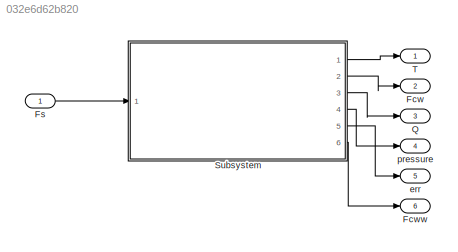
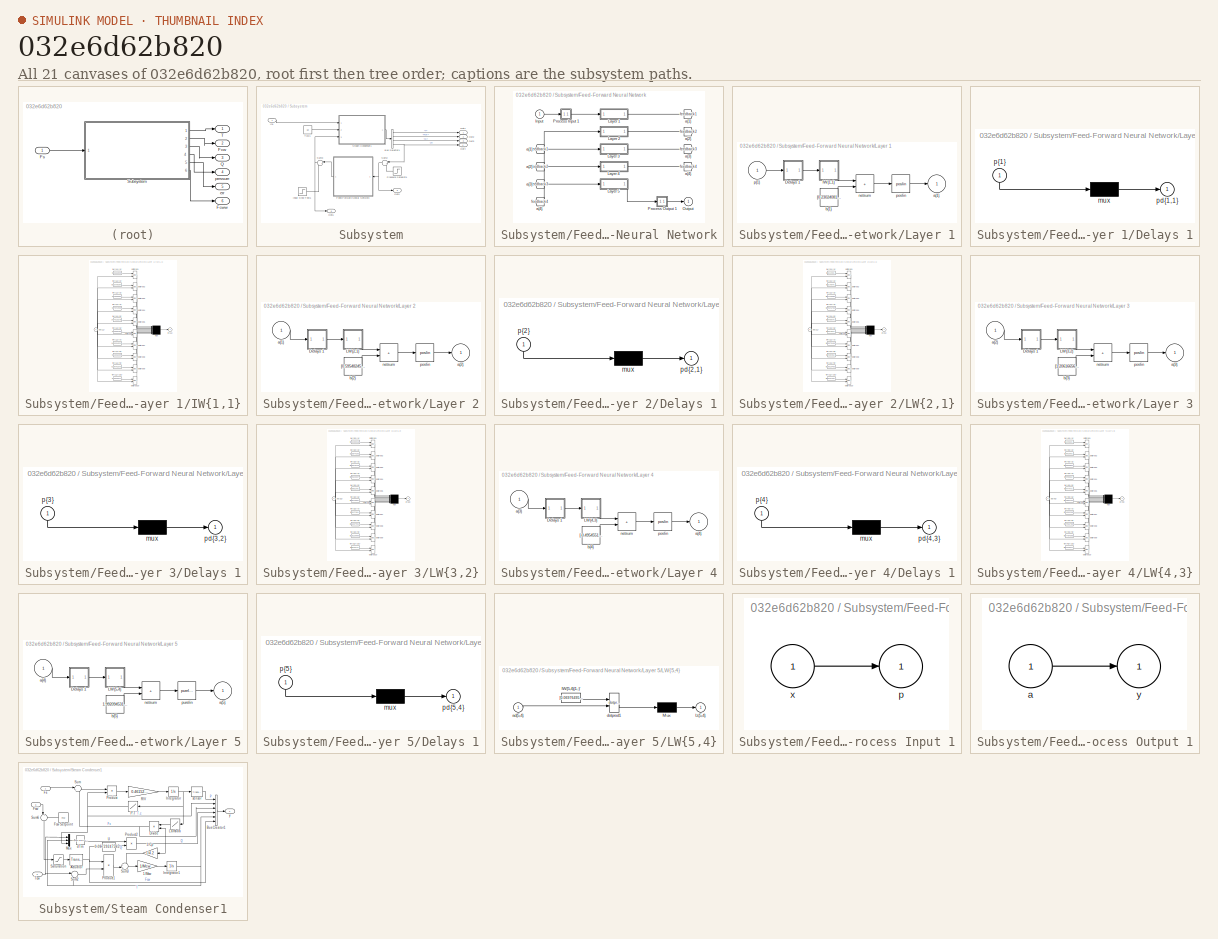
[diagram: thumbnail index - all 21 canvases of the model, root first then tree order]
MODEL slx_032e6d62b820
KIND model
CONFIG AbsTol = auto
CONFIG EnableMultiTasking = off
CONFIG FixedStep = 0.02
CONFIG MaxStep = .1
CONFIG MinStep = auto
CONFIG RelTol = 1e-3
CONFIG SampleTimeConstraint = Unconstrained
CONFIG SolverName = VariableStepAuto
CONFIG StartTime = 0.0
CONFIG StopTime = 40
WORKSPACE source: mxarray member
WORKSPACE T = [0 0.05 0.1 0.15 0.2 0.25 0.3 0.35 0.4 0.45 0.5 0.55 ... (701 elements, 701x1)]
WORKSPACE U = [3.99594136536 3.99594136536 3.99594136536 3.99594136536 3.99594136536 3.99594136536 3.99594136536 3.99594136536 3.99594136536 3.99594136536 3.99594136536 3.99594136536 ... (701 elements, 701x1)]
BLOCK [Outport] Fcw
  Port = 2
  VectorParamsAs1DForOutWhenUnconnected = off
BLOCK [Outport] Fcww
  Port = 6
BLOCK [Inport] Fs
BLOCK [Outport] Q
  Port = 3
  VectorParamsAs1DForOutWhenUnconnected = off
BLOCK [SubSystem] Subsystem
  Ports = [1, 6]
BLOCK [BusSelector] Subsystem/Bus Selector1
  OutputSignals = T,Fcw,Q,P
  Ports = [1, 4]
BLOCK [SubSystem] Subsystem/Feed-Forward Neural Network
  Ports = [1, 1]
BLOCK [From] Subsystem/Feed-Forward Neural Network/ a{1} 
  GotoTag = feedback1
BLOCK [From] Subsystem/Feed-Forward Neural Network/ a{2} 
  GotoTag = feedback2
BLOCK [From] Subsystem/Feed-Forward Neural Network/ a{3} 
  GotoTag = feedback3
BLOCK [From] Subsystem/Feed-Forward Neural Network/ a{4} 
  GotoTag = feedback4
BLOCK [Inport] Subsystem/Feed-Forward Neural Network/Input
  PortDimensions = 1
BLOCK [SubSystem] Subsystem/Feed-Forward Neural Network/Layer 1
  Ports = [1, 1]
BLOCK [SubSystem] Subsystem/Feed-Forward Neural Network/Layer 1/Delays 1
  Ports = [1, 1]
BLOCK [Mux] Subsystem/Feed-Forward Neural Network/Layer 1/Delays 1/mux
  Inputs = 1
  Ports = [1, 1]
BLOCK [Outport] Subsystem/Feed-Forward Neural Network/Layer 1/Delays 1/pd{1,1}
BLOCK [Inport] Subsystem/Feed-Forward Neural Network/Layer 1/Delays 1/p{1}
  NameLocation = left
  PortDimensions = 1
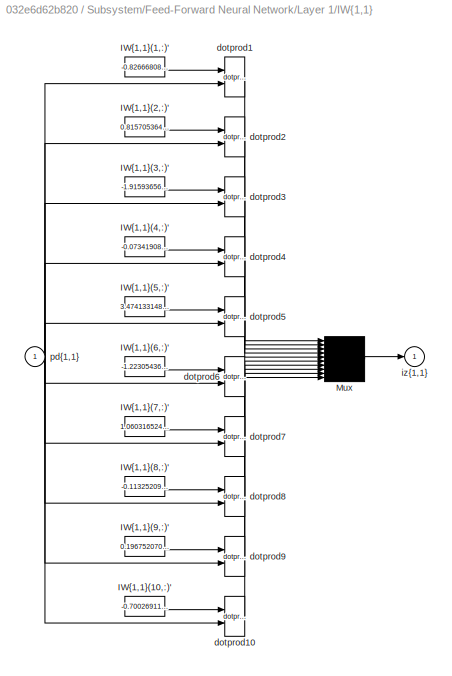
BLOCK [SubSystem] Subsystem/Feed-Forward Neural Network/Layer 1/IW{1,1}
  Ports = [1, 1]
BLOCK [Constant] Subsystem/Feed-Forward Neural Network/Layer 1/IW{1,1}/IW{1,1}(1,:)'
  Value = -0.826668084825399329673700776766054332256317138671875
BLOCK [Constant] Subsystem/Feed-Forward Neural Network/Layer 1/IW{1,1}/IW{1,1}(10,:)'
  Value = -0.70026911504406630371022401959635317325592041015625
BLOCK [Constant] Subsystem/Feed-Forward Neural Network/Layer 1/IW{1,1}/IW{1,1}(2,:)'
  Value = 0.815705364197036875140156553243286907672882080078125
BLOCK [Constant] Subsystem/Feed-Forward Neural Network/Layer 1/IW{1,1}/IW{1,1}(3,:)'
  Value = -1.9159365616009440547173880986520089209079742431640625
BLOCK [Constant] Subsystem/Feed-Forward Neural Network/Layer 1/IW{1,1}/IW{1,1}(4,:)'
  Value = -0.0734190816843673654812363338351133279502391815185546875
BLOCK [Constant] Subsystem/Feed-Forward Neural Network/Layer 1/IW{1,1}/IW{1,1}(5,:)'
  Value = 3.4741331485100896969697714666835963726043701171875
BLOCK [Constant] Subsystem/Feed-Forward Neural Network/Layer 1/IW{1,1}/IW{1,1}(6,:)'
  Value = -1.2230543623648468809506084653548896312713623046875
BLOCK [Constant] Subsystem/Feed-Forward Neural Network/Layer 1/IW{1,1}/IW{1,1}(7,:)'
  Value = 1.0603165244370444941779396685888059437274932861328125
BLOCK [Constant] Subsystem/Feed-Forward Neural Network/Layer 1/IW{1,1}/IW{1,1}(8,:)'
  Value = -0.113252095370199590274040701842750422656536102294921875
BLOCK [Constant] Subsystem/Feed-Forward Neural Network/Layer 1/IW{1,1}/IW{1,1}(9,:)'
  Value = 0.19675207047984333286194669199176132678985595703125
BLOCK [Mux] Subsystem/Feed-Forward Neural Network/Layer 1/IW{1,1}/Mux
  Inputs = 10
  Ports = [10, 1]
BLOCK [Reference] Subsystem/Feed-Forward Neural Network/Layer 1/IW{1,1}/dotprod1  REF=neural/Weight Functions/dotprod
  Ports = [2, 1]
  SourceBlock = neural/Weight Functions/dotprod
  SourceType = DOTPROD
BLOCK [Reference] Subsystem/Feed-Forward Neural Network/Layer 1/IW{1,1}/dotprod10  REF=neural/Weight Functions/dotprod
  Ports = [2, 1]
  SourceBlock = neural/Weight Functions/dotprod
  SourceType = DOTPROD
BLOCK [Reference] Subsystem/Feed-Forward Neural Network/Layer 1/IW{1,1}/dotprod2  REF=neural/Weight Functions/dotprod
  Ports = [2, 1]
  SourceBlock = neural/Weight Functions/dotprod
  SourceType = DOTPROD
BLOCK [Reference] Subsystem/Feed-Forward Neural Network/Layer 1/IW{1,1}/dotprod3  REF=neural/Weight Functions/dotprod
  Ports = [2, 1]
  SourceBlock = neural/Weight Functions/dotprod
  SourceType = DOTPROD
BLOCK [Reference] Subsystem/Feed-Forward Neural Network/Layer 1/IW{1,1}/dotprod4  REF=neural/Weight Functions/dotprod
  Ports = [2, 1]
  SourceBlock = neural/Weight Functions/dotprod
  SourceType = DOTPROD
BLOCK [Reference] Subsystem/Feed-Forward Neural Network/Layer 1/IW{1,1}/dotprod5  REF=neural/Weight Functions/dotprod
  Ports = [2, 1]
  SourceBlock = neural/Weight Functions/dotprod
  SourceType = DOTPROD
BLOCK [Reference] Subsystem/Feed-Forward Neural Network/Layer 1/IW{1,1}/dotprod6  REF=neural/Weight Functions/dotprod
  Ports = [2, 1]
  SourceBlock = neural/Weight Functions/dotprod
  SourceType = DOTPROD
BLOCK [Reference] Subsystem/Feed-Forward Neural Network/Layer 1/IW{1,1}/dotprod7  REF=neural/Weight Functions/dotprod
  Ports = [2, 1]
  SourceBlock = neural/Weight Functions/dotprod
  SourceType = DOTPROD
BLOCK [Reference] Subsystem/Feed-Forward Neural Network/Layer 1/IW{1,1}/dotprod8  REF=neural/Weight Functions/dotprod
  Ports = [2, 1]
  SourceBlock = neural/Weight Functions/dotprod
  SourceType = DOTPROD
BLOCK [Reference] Subsystem/Feed-Forward Neural Network/Layer 1/IW{1,1}/dotprod9  REF=neural/Weight Functions/dotprod
  Ports = [2, 1]
  SourceBlock = neural/Weight Functions/dotprod
  SourceType = DOTPROD
BLOCK [Outport] Subsystem/Feed-Forward Neural Network/Layer 1/IW{1,1}/iz{1,1}
BLOCK [Inport] Subsystem/Feed-Forward Neural Network/Layer 1/IW{1,1}/pd{1,1}
  PortDimensions = 1
BLOCK [Outport] Subsystem/Feed-Forward Neural Network/Layer 1/a{1}
  InitialOutput = [0;0;0;0;0;0;0;0;0;0]
BLOCK [Constant] Subsystem/Feed-Forward Neural Network/Layer 1/b{1}
  Value = [0.230240814844378582915140896147931925952434539794921875;-0.01021417578589343434780634112257757806219160556793212890625;0.8336621088893230169247772209928371012210845947265625;0.28946335526360178480587137528345920145511627197265625;-0.333024330317023053993352732504718005657196044921875;0.487335555949120813323816037154756486415863037109375;-0.132164654535784464872705257221241481602191925048828125;0...<+162ch>
BLOCK [Sum] Subsystem/Feed-Forward Neural Network/Layer 1/netsum
  IconShape = rectangular
  InputSameDT = on
  Inputs = 2
  OutDataTypeStr = Inherit: Same as first input
  Ports = [2, 1]
  SaturateOnIntegerOverflow = on
BLOCK [Reference] Subsystem/Feed-Forward Neural Network/Layer 1/poslin  REF=neural/Transfer Functions/poslin
  Ports = [1, 1]
  SourceBlock = neural/Transfer Functions/poslin
  SourceType = POSLIN
BLOCK [Inport] Subsystem/Feed-Forward Neural Network/Layer 1/p{1}
  PortDimensions = 1
BLOCK [SubSystem] Subsystem/Feed-Forward Neural Network/Layer 2
  Ports = [1, 1]
BLOCK [SubSystem] Subsystem/Feed-Forward Neural Network/Layer 2/Delays 1
  Ports = [1, 1]
BLOCK [Mux] Subsystem/Feed-Forward Neural Network/Layer 2/Delays 1/mux
  Inputs = 1
  Ports = [1, 1]
BLOCK [Outport] Subsystem/Feed-Forward Neural Network/Layer 2/Delays 1/pd{2,1}
BLOCK [Inport] Subsystem/Feed-Forward Neural Network/Layer 2/Delays 1/p{2}
  NameLocation = left
  PortDimensions = 10
BLOCK [SubSystem] Subsystem/Feed-Forward Neural Network/Layer 2/LW{2,1}
  Ports = [1, 1]
BLOCK [Constant] Subsystem/Feed-Forward Neural Network/Layer 2/LW{2,1}/IW{2,1}(1,:)'
  Value = [-0.31123310725178632285548019353882409632205963134765625;-1.469321495607214256295947052421979606151580810546875;1.7512337188909194996000451283180154860019683837890625;-0.28837010143751540258705290398211218416690826416015625;-0.650296904248475637899673529318533837795257568359375;0.79149097122355704936325082599068991839885711669921875;-2.430225902669928217392225633375346660614013671875;-1.325389239...<+148ch>
BLOCK [Constant] Subsystem/Feed-Forward Neural Network/Layer 2/LW{2,1}/IW{2,1}(10,:)'
  Value = [0.5940725713630230497841466785757802426815032958984375;-0.2242780336341263780486343648590263910591602325439453125;1.551496659314222537062732953927479684352874755859375;-0.41231345611790548577602066870895214378833770751953125;0.20714960886964106645535821371595375239849090576171875;0.701514109569985055969709719647653400897979736328125;-0.272464453987376231669514936584164388477802276611328125;-1.032...<+160ch>
BLOCK [Constant] Subsystem/Feed-Forward Neural Network/Layer 2/LW{2,1}/IW{2,1}(2,:)'
  Value = [-0.0178975374680546243932877104043654981069266796112060546875;-0.316716679552807078845688693036208860576152801513671875;0.92256475953105387954877869560732506215572357177734375;0.263275217675462636091054946518852375447750091552734375;-0.334982081241569196183860412929789163172245025634765625;0.086180170541050038490737961183185689151287078857421875;-0.218790305190508155286366331893077585846185684204...<+172ch>
BLOCK [Constant] Subsystem/Feed-Forward Neural Network/Layer 2/LW{2,1}/IW{2,1}(3,:)'
  Value = [0.9114568080755713896934366857749409973621368408203125;-0.43987318638631578426867463349481113255023956298828125;-0.00022860043250971760222210737989456674768007360398769378662109375;0.2039764312835918025346160220578894950449466705322265625;1.822125124921296190905195544473826885223388671875;-0.5959660144003648962751640283386223018169403076171875;0.74163121504978324338708262075670063495635986328125;...<+169ch>
BLOCK [Constant] Subsystem/Feed-Forward Neural Network/Layer 2/LW{2,1}/IW{2,1}(4,:)'
  Value = [0.496467835040173388616580041343695484101772308349609375;0.8003342134367754656665283619076944887638092041015625;0.2715311750074949070921093152719549834728240966796875;-0.02720061211852882465667136102638323791325092315673828125;-0.127613664961616801729604731008294038474559783935546875;-0.2023171556652099967177349526537000201642513275146484375;-0.5634077333743292559375959172029979526996612548828125...<+169ch>
BLOCK [Constant] Subsystem/Feed-Forward Neural Network/Layer 2/LW{2,1}/IW{2,1}(5,:)'
  Value = [-0.8790576416602127185484505389467813074588775634765625;-0.665663180170688040249160621897317469120025634765625;-0.46176114720288818915605588699690997600555419921875;0.396211040360616717492803218192420899868011474609375;-0.6191334656400917513252579738036729395389556884765625;-0.0359558779362874059160049000638537108898162841796875;0.64875253337767002648206471349112689495086669921875;0.1887125013286...<+147ch>
BLOCK [Constant] Subsystem/Feed-Forward Neural Network/Layer 2/LW{2,1}/IW{2,1}(6,:)'
  Value = [-0.2014844587728485958422197654726915061473846435546875;-0.7875673101426723388129857994499616324901580810546875;-0.1543287699823843173163595565711148083209991455078125;0.3330558268051737602633011192665435373783111572265625;-0.2621669078722101975387204220169223845005035400390625;-0.7587767734056753976545905970851890742778778076171875;0.9653267994439005406093201600015163421630859375;-0.954974814519...<+149ch>
BLOCK [Constant] Subsystem/Feed-Forward Neural Network/Layer 2/LW{2,1}/IW{2,1}(7,:)'
  Value = [0.05375166101659178963245722115971148014068603515625;-0.869132604652068874173664880800060927867889404296875;0.0957418024296894376590216779732145369052886962890625;-0.643735091199324482857946350122801959514617919921875;-0.4580628093162031344576234914711676537990570068359375;0.17901496939011796172280810424126684665679931640625;-0.509974934208484054209975511184893548488616943359375;-1.52191856716526...<+149ch>
BLOCK [Constant] Subsystem/Feed-Forward Neural Network/Layer 2/LW{2,1}/IW{2,1}(8,:)'
  Value = [-0.2425462865928274813764886630451655946671962738037109375;-0.60067130915694288972872527665458619594573974609375;1.0197024905286109497382085464778356254100799560546875;-0.60109024079500006365606168401427567005157470703125;1.095065618142897267972557528992183506488800048828125;-0.79903802226295683741597031257697381079196929931640625;-0.4110697480527376601600053618312813341617584228515625;-0.8156325...<+156ch>
BLOCK [Constant] Subsystem/Feed-Forward Neural Network/Layer 2/LW{2,1}/IW{2,1}(9,:)'
  Value = [0.1601045099351747491578379367638262920081615447998046875;-0.0206247239679522298416713965707458555698394775390625;-0.3703365745029938427279603274655528366565704345703125;0.8496229838840345660599950861069373786449432373046875;-0.726008181683521769400613266043365001678466796875;-0.34248857917064590150602043649996630847454071044921875;0.1681386665569040150813862055656500160694122314453125;-0.6325278...<+156ch>
BLOCK [Mux] Subsystem/Feed-Forward Neural Network/Layer 2/LW{2,1}/Mux
  Inputs = 10
  Ports = [10, 1]
BLOCK [Inport] Subsystem/Feed-Forward Neural Network/Layer 2/LW{2,1}/ad{2,1}
  PortDimensions = 10
BLOCK [Reference] Subsystem/Feed-Forward Neural Network/Layer 2/LW{2,1}/dotprod1  REF=neural/Weight Functions/dotprod
  Ports = [2, 1]
  SourceBlock = neural/Weight Functions/dotprod
  SourceType = DOTPROD
BLOCK [Reference] Subsystem/Feed-Forward Neural Network/Layer 2/LW{2,1}/dotprod10  REF=neural/Weight Functions/dotprod
  Ports = [2, 1]
  SourceBlock = neural/Weight Functions/dotprod
  SourceType = DOTPROD
BLOCK [Reference] Subsystem/Feed-Forward Neural Network/Layer 2/LW{2,1}/dotprod2  REF=neural/Weight Functions/dotprod
  Ports = [2, 1]
  SourceBlock = neural/Weight Functions/dotprod
  SourceType = DOTPROD
BLOCK [Reference] Subsystem/Feed-Forward Neural Network/Layer 2/LW{2,1}/dotprod3  REF=neural/Weight Functions/dotprod
  Ports = [2, 1]
  SourceBlock = neural/Weight Functions/dotprod
  SourceType = DOTPROD
BLOCK [Reference] Subsystem/Feed-Forward Neural Network/Layer 2/LW{2,1}/dotprod4  REF=neural/Weight Functions/dotprod
  Ports = [2, 1]
  SourceBlock = neural/Weight Functions/dotprod
  SourceType = DOTPROD
BLOCK [Reference] Subsystem/Feed-Forward Neural Network/Layer 2/LW{2,1}/dotprod5  REF=neural/Weight Functions/dotprod
  Ports = [2, 1]
  SourceBlock = neural/Weight Functions/dotprod
  SourceType = DOTPROD
BLOCK [Reference] Subsystem/Feed-Forward Neural Network/Layer 2/LW{2,1}/dotprod6  REF=neural/Weight Functions/dotprod
  Ports = [2, 1]
  SourceBlock = neural/Weight Functions/dotprod
  SourceType = DOTPROD
BLOCK [Reference] Subsystem/Feed-Forward Neural Network/Layer 2/LW{2,1}/dotprod7  REF=neural/Weight Functions/dotprod
  Ports = [2, 1]
  SourceBlock = neural/Weight Functions/dotprod
  SourceType = DOTPROD
BLOCK [Reference] Subsystem/Feed-Forward Neural Network/Layer 2/LW{2,1}/dotprod8  REF=neural/Weight Functions/dotprod
  Ports = [2, 1]
  SourceBlock = neural/Weight Functions/dotprod
  SourceType = DOTPROD
BLOCK [Reference] Subsystem/Feed-Forward Neural Network/Layer 2/LW{2,1}/dotprod9  REF=neural/Weight Functions/dotprod
  Ports = [2, 1]
  SourceBlock = neural/Weight Functions/dotprod
  SourceType = DOTPROD
BLOCK [Outport] Subsystem/Feed-Forward Neural Network/Layer 2/LW{2,1}/lz{2,1}
BLOCK [Inport] Subsystem/Feed-Forward Neural Network/Layer 2/a{1} 
  PortDimensions = 10
BLOCK [Outport] Subsystem/Feed-Forward Neural Network/Layer 2/a{2}
  InitialOutput = [0;0;0;0;0;0;0;0;0;0]
BLOCK [Constant] Subsystem/Feed-Forward Neural Network/Layer 2/b{2}
  Value = [0.595482459841017774948568330728448927402496337890625;-0.413038543084738363209140743492753244936466217041015625;-0.77423543839064257188198325820849277079105377197265625;-0.77540839016000606687128993144142441451549530029296875;-0.69268656481738677399562220671214163303375244140625;-0.4379893949322581914174179473775438964366912841796875;-0.63383818742563102777154426803463138639926910400390625;-0.126...<+168ch>
BLOCK [Sum] Subsystem/Feed-Forward Neural Network/Layer 2/netsum
  IconShape = rectangular
  InputSameDT = on
  Inputs = 2
  OutDataTypeStr = Inherit: Same as first input
  Ports = [2, 1]
  SaturateOnIntegerOverflow = on
BLOCK [Reference] Subsystem/Feed-Forward Neural Network/Layer 2/poslin  REF=neural/Transfer Functions/poslin
  Ports = [1, 1]
  SourceBlock = neural/Transfer Functions/poslin
  SourceType = POSLIN
BLOCK [SubSystem] Subsystem/Feed-Forward Neural Network/Layer 3
  Ports = [1, 1]
BLOCK [SubSystem] Subsystem/Feed-Forward Neural Network/Layer 3/Delays 1
  Ports = [1, 1]
BLOCK [Mux] Subsystem/Feed-Forward Neural Network/Layer 3/Delays 1/mux
  Inputs = 1
  Ports = [1, 1]
BLOCK [Outport] Subsystem/Feed-Forward Neural Network/Layer 3/Delays 1/pd{3,2}
BLOCK [Inport] Subsystem/Feed-Forward Neural Network/Layer 3/Delays 1/p{3}
  NameLocation = left
  PortDimensions = 10
BLOCK [SubSystem] Subsystem/Feed-Forward Neural Network/Layer 3/LW{3,2}
  Ports = [1, 1]
BLOCK [Constant] Subsystem/Feed-Forward Neural Network/Layer 3/LW{3,2}/IW{3,2}(1,:)'
  Value = [0.42230015240333396153715739274048246443271636962890625;-0.464755181849058229825999433160177432000637054443359375;1.9453528874502861167883338566753081977367401123046875;-0.32490527135295133032144576645805500447750091552734375;-0.4618768266279633660786885229754261672496795654296875;0.295235260345368732970428027329035103321075439453125;0.00822064630778608640415683339597308076918125152587890625;1.23...<+161ch>
BLOCK [Constant] Subsystem/Feed-Forward Neural Network/Layer 3/LW{3,2}/IW{3,2}(10,:)'
  Value = [-0.8640144630599788655445081531070172786712646484375;-0.2264576109580307416990763158537447452545166015625;-0.92847453346176411770329650607891380786895751953125;0.834848684098764781680301894084550440311431884765625;0.288885562862672973238886697799898684024810791015625;-0.0997246060682079882298012307728640735149383544921875;0.226921473625750547142843061010353267192840576171875;0.2786339220802167560...<+143ch>
BLOCK [Constant] Subsystem/Feed-Forward Neural Network/Layer 3/LW{3,2}/IW{3,2}(2,:)'
  Value = [1.0087425337536386482639727546484209597110748291015625;-0.620528400869083451851793142850510776042938232421875;-0.63207781154537900913936709912377409636974334716796875;0.443516066782204898544250681879930198192596435546875;0.5310000332428768121673101632040925323963165283203125;0.3580335081864038926369175896979868412017822265625;0.3238895038113038804539201009902171790599822998046875;0.19528231931924...<+150ch>
BLOCK [Constant] Subsystem/Feed-Forward Neural Network/Layer 3/LW{3,2}/IW{3,2}(3,:)'
  Value = [0.09675445717161339220790949866568553261458873748779296875;0.1346160128529440280775730798268341459333896636962890625;-0.08934636093222021735460458558009122498333454132080078125;0.1238463946215047906118655873797251842916011810302734375;-0.6226760464170180142673416412435472011566162109375;0.2715734210281672833531274591223336756229400634765625;0.51223817361442025575257730451994575560092926025390625;...<+169ch>
BLOCK [Constant] Subsystem/Feed-Forward Neural Network/Layer 3/LW{3,2}/IW{3,2}(4,:)'
  Value = [0.8962330769412141240337632552837021648883819580078125;0.206166966535160367524071034495136700570583343505859375;0.06339036844936292436347713419309002347290515899658203125;-0.298873791997468496450807151632034219801425933837890625;-0.425003653867737529736814394709654152393341064453125;0.890348226218802718534561790875159204006195068359375;-0.4335997277560432738852114198380149900913238525390625;-0.06...<+167ch>
BLOCK [Constant] Subsystem/Feed-Forward Neural Network/Layer 3/LW{3,2}/IW{3,2}(5,:)'
  Value = [-0.9882268167530396940634318525553680956363677978515625;-0.8243020120842292630669589925673790276050567626953125;-0.474056250874433426911735978137585334479808807373046875;-0.3177507859017814073609997649327851831912994384765625;-0.81777307262693010869725185330025851726531982421875;-0.582130155147954297945034340955317020416259765625;0.273352384266664583112316222468507476150989532470703125;-0.4216028...<+160ch>
BLOCK [Constant] Subsystem/Feed-Forward Neural Network/Layer 3/LW{3,2}/IW{3,2}(6,:)'
  Value = [0.58419367053035198278365669466438703238964080810546875;0.90251141886128272151523788124904967844486236572265625;0.62012722071280867996989627499715425074100494384765625;0.2184737737019071257549285292043350636959075927734375;0.1524187613260139517734614855726249516010284423828125;0.4185634054210896071168690468766726553440093994140625;-0.1364832995021457995310498745311633683741092681884765625;-0.9555...<+162ch>
BLOCK [Constant] Subsystem/Feed-Forward Neural Network/Layer 3/LW{3,2}/IW{3,2}(7,:)'
  Value = [-0.912748444038607775752325323992408812046051025390625;-0.0834190636841314614446929454061319120228290557861328125;-0.31333242893386803462618672710959799587726593017578125;-0.380566736422279283669212190943653695285320281982421875;0.366726486589306066576909870491363108158111572265625;-0.5275388460124068590317847338155843317508697509765625;0.6838583053826179369849569411599077284336090087890625;0.873...<+161ch>
BLOCK [Constant] Subsystem/Feed-Forward Neural Network/Layer 3/LW{3,2}/IW{3,2}(8,:)'
  Value = [0.563379312328809334076140657998621463775634765625;-1.418848345873518379534061750746332108974456787109375;-0.063815894302275300020710346871055662631988525390625;1.146209905486756497339229099452495574951171875;0.0931862291806455633746963940211571753025054931640625;-0.7612075044053889794071210417314432561397552490234375;0.521565268594802677881716590491123497486114501953125;0.03016959982314640353884...<+145ch>
BLOCK [Constant] Subsystem/Feed-Forward Neural Network/Layer 3/LW{3,2}/IW{3,2}(9,:)'
  Value = [0.1822595529134967140549861142062582075595855712890625;-0.3018214640064897924531805983860976994037628173828125;-0.496998609737553553866717948039877228438854217529296875;-0.52541831536877270369956249851384200155735015869140625;-0.1485423162576242628318823335575871169567108154296875;0.21460788137126929342457515303976833820343017578125;-0.53612257790433714976785495309741236269474029541015625;-0.0809...<+165ch>
BLOCK [Mux] Subsystem/Feed-Forward Neural Network/Layer 3/LW{3,2}/Mux
  Inputs = 10
  Ports = [10, 1]
BLOCK [Inport] Subsystem/Feed-Forward Neural Network/Layer 3/LW{3,2}/ad{3,2}
  PortDimensions = 10
BLOCK [Reference] Subsystem/Feed-Forward Neural Network/Layer 3/LW{3,2}/dotprod1  REF=neural/Weight Functions/dotprod
  Ports = [2, 1]
  SourceBlock = neural/Weight Functions/dotprod
  SourceType = DOTPROD
BLOCK [Reference] Subsystem/Feed-Forward Neural Network/Layer 3/LW{3,2}/dotprod10  REF=neural/Weight Functions/dotprod
  Ports = [2, 1]
  SourceBlock = neural/Weight Functions/dotprod
  SourceType = DOTPROD
BLOCK [Reference] Subsystem/Feed-Forward Neural Network/Layer 3/LW{3,2}/dotprod2  REF=neural/Weight Functions/dotprod
  Ports = [2, 1]
  SourceBlock = neural/Weight Functions/dotprod
  SourceType = DOTPROD
BLOCK [Reference] Subsystem/Feed-Forward Neural Network/Layer 3/LW{3,2}/dotprod3  REF=neural/Weight Functions/dotprod
  Ports = [2, 1]
  SourceBlock = neural/Weight Functions/dotprod
  SourceType = DOTPROD
BLOCK [Reference] Subsystem/Feed-Forward Neural Network/Layer 3/LW{3,2}/dotprod4  REF=neural/Weight Functions/dotprod
  Ports = [2, 1]
  SourceBlock = neural/Weight Functions/dotprod
  SourceType = DOTPROD
BLOCK [Reference] Subsystem/Feed-Forward Neural Network/Layer 3/LW{3,2}/dotprod5  REF=neural/Weight Functions/dotprod
  Ports = [2, 1]
  SourceBlock = neural/Weight Functions/dotprod
  SourceType = DOTPROD
BLOCK [Reference] Subsystem/Feed-Forward Neural Network/Layer 3/LW{3,2}/dotprod6  REF=neural/Weight Functions/dotprod
  Ports = [2, 1]
  SourceBlock = neural/Weight Functions/dotprod
  SourceType = DOTPROD
BLOCK [Reference] Subsystem/Feed-Forward Neural Network/Layer 3/LW{3,2}/dotprod7  REF=neural/Weight Functions/dotprod
  Ports = [2, 1]
  SourceBlock = neural/Weight Functions/dotprod
  SourceType = DOTPROD
BLOCK [Reference] Subsystem/Feed-Forward Neural Network/Layer 3/LW{3,2}/dotprod8  REF=neural/Weight Functions/dotprod
  Ports = [2, 1]
  SourceBlock = neural/Weight Functions/dotprod
  SourceType = DOTPROD
BLOCK [Reference] Subsystem/Feed-Forward Neural Network/Layer 3/LW{3,2}/dotprod9  REF=neural/Weight Functions/dotprod
  Ports = [2, 1]
  SourceBlock = neural/Weight Functions/dotprod
  SourceType = DOTPROD
BLOCK [Outport] Subsystem/Feed-Forward Neural Network/Layer 3/LW{3,2}/lz{3,2}
BLOCK [Inport] Subsystem/Feed-Forward Neural Network/Layer 3/a{2} 
  PortDimensions = 10
BLOCK [Outport] Subsystem/Feed-Forward Neural Network/Layer 3/a{3}
  InitialOutput = [0;0;0;0;0;0;0;0;0;0]
BLOCK [Constant] Subsystem/Feed-Forward Neural Network/Layer 3/b{3}
  Value = [1.2061665642082444183103007162571884691715240478515625;-1.072870408656541485470370389521121978759765625;0.251066844884624718048371505574323236942291259765625;-0.176117062475543539878941601273254491388797760009765625;0.0006212891420436239542368639376945793628692626953125;-0.8432915935391929185271919777733273804187774658203125;-0.82902210820062516294370880132191814482212066650390625;-0.057987609694...<+151ch>
BLOCK [Sum] Subsystem/Feed-Forward Neural Network/Layer 3/netsum
  IconShape = rectangular
  InputSameDT = on
  Inputs = 2
  OutDataTypeStr = Inherit: Same as first input
  Ports = [2, 1]
  SaturateOnIntegerOverflow = on
BLOCK [Reference] Subsystem/Feed-Forward Neural Network/Layer 3/poslin  REF=neural/Transfer Functions/poslin
  Ports = [1, 1]
  SourceBlock = neural/Transfer Functions/poslin
  SourceType = POSLIN
BLOCK [SubSystem] Subsystem/Feed-Forward Neural Network/Layer 4
  Ports = [1, 1]
BLOCK [SubSystem] Subsystem/Feed-Forward Neural Network/Layer 4/Delays 1
  Ports = [1, 1]
BLOCK [Mux] Subsystem/Feed-Forward Neural Network/Layer 4/Delays 1/mux
  Inputs = 1
  Ports = [1, 1]
BLOCK [Outport] Subsystem/Feed-Forward Neural Network/Layer 4/Delays 1/pd{4,3}
BLOCK [Inport] Subsystem/Feed-Forward Neural Network/Layer 4/Delays 1/p{4}
  NameLocation = left
  PortDimensions = 10
BLOCK [SubSystem] Subsystem/Feed-Forward Neural Network/Layer 4/LW{4,3}
  Ports = [1, 1]
BLOCK [Constant] Subsystem/Feed-Forward Neural Network/Layer 4/LW{4,3}/IW{4,3}(1,:)'
  Value = [-1.12265016139534079542272593243978917598724365234375;0.4726801486024034826272099962807260453701019287109375;0.36268289823253230252930734422989189624786376953125;0.10701181538384048341772114554260042496025562286376953125;-0.1757047340874803020849270751568838022649288177490234375;-0.410743175435414276108758713235147297382354736328125;0.7619926248164741178214853789540939033031463623046875;-0.016051...<+165ch>
BLOCK [Constant] Subsystem/Feed-Forward Neural Network/Layer 4/LW{4,3}/IW{4,3}(10,:)'
  Value = [0.81223041636448922719893062094342894852161407470703125;-0.6299144486870582593240897040232084691524505615234375;-0.47363046330215030632615480499225668609142303466796875;1.27974104111037689790464355610311031341552734375;-0.3162884489577117985703580416156910359859466552734375;-0.26994773324075749254546963129541836678981781005859375;0.37255391979251373246739831301965750753879547119140625;1.205834972...<+148ch>
BLOCK [Constant] Subsystem/Feed-Forward Neural Network/Layer 4/LW{4,3}/IW{4,3}(2,:)'
  Value = [-1.456256378784395177916621832991950213909149169921875;-0.1386526565771135366400557131782989017665386199951171875;-0.39803847560947247519180791641701944172382354736328125;0.376741990868013854054652256309054791927337646484375;0.5886370628508659219590981592773459851741790771484375;-1.3007377607374117634009280664031393826007843017578125;0.044241393079879183514169227464662981219589710235595703125;0.8...<+161ch>
BLOCK [Constant] Subsystem/Feed-Forward Neural Network/Layer 4/LW{4,3}/IW{4,3}(3,:)'
  Value = [0.0383586242768238216971354859197163023054599761962890625;0.366831733935956805225941934622824192047119140625;0.6813027073797972565927238974836654961109161376953125;-0.49480183953733070101321800393634475767612457275390625;0.1760521106169949945297048543579876422882080078125;-0.66191523986713407534665520870476029813289642333984375;0.77325633438717866763312258626683615148067474365234375;-0.6027820842...<+154ch>
BLOCK [Constant] Subsystem/Feed-Forward Neural Network/Layer 4/LW{4,3}/IW{4,3}(4,:)'
  Value = [-0.499865269128736688930558784704771824181079864501953125;0.42112596405173430280655111346277408301830291748046875;-0.1813874941957727970898162084267823956906795501708984375;0.451995454503296312243065813163411803543567657470703125;-0.6655677214106654471237334291799925267696380615234375;-0.415036093549412565817391396194580011069774627685546875;0.59214694555344415949349468064610846340656280517578125...<+172ch>
BLOCK [Constant] Subsystem/Feed-Forward Neural Network/Layer 4/LW{4,3}/IW{4,3}(5,:)'
  Value = [-0.04776727707786297683067999741979292593896389007568359375;0.0106023646572297840229293086622419650666415691375732421875;0.497730739226063756408535709852003492414951324462890625;0.72241584896026811435376657755114138126373291015625;-0.6002743542850959013179590328945778310298919677734375;1.2088103282487951961599037531414069235324859619140625;-0.024858745538421225806935410673759179189801216125488281...<+168ch>
BLOCK [Constant] Subsystem/Feed-Forward Neural Network/Layer 4/LW{4,3}/IW{4,3}(6,:)'
  Value = [3.14892122146403607985121197998523712158203125;-0.9781958684821179250690192930051125586032867431640625;-0.1161308596180801455677311651015770621597766876220703125;0.1233693019945746593979407634833478368818759918212890625;-0.1663410627215382853183456290935282595455646514892578125;0.79995812152368783731759549482376314699649810791015625;0.93639556448059835247477167285978794097900390625;1.126911190483...<+153ch>
BLOCK [Constant] Subsystem/Feed-Forward Neural Network/Layer 4/LW{4,3}/IW{4,3}(7,:)'
  Value = [0.145602383097704624059787192891235463321208953857421875;-0.364405337822077346476845605138805694878101348876953125;0.82318577205773824090329071623273193836212158203125;0.52140036778095322222981167215039022266864776611328125;0.6103466701085229484391447840607725083827972412109375;-0.392161108531997371073885005898773670196533203125;0.717693122595087107384870250825770199298858642578125;0.249633392814...<+152ch>
BLOCK [Constant] Subsystem/Feed-Forward Neural Network/Layer 4/LW{4,3}/IW{4,3}(8,:)'
  Value = [0.1496678875255581520065106815309263765811920166015625;-0.2131730131059011157379501355535467155277729034423828125;0.427568728602545300443438236470683477818965911865234375;-0.39622974342622330201635350022115744650363922119140625;0.6511676315723111674316214703139849007129669189453125;0.2207861180709015658241156643271096982061862945556640625;1.2010481055241661874077863103593699634075164794921875;0.9...<+162ch>
BLOCK [Constant] Subsystem/Feed-Forward Neural Network/Layer 4/LW{4,3}/IW{4,3}(9,:)'
  Value = [0.67784398252901578718621067309868521988391876220703125;-0.5552409488232845635735657197074033319950103759765625;-0.198957701411829945836728938957094214856624603271484375;0.70026315407700312487548899298417381942272186279296875;0.6024883798819538061053435740177519619464874267578125;-1.039184519328525624359826906584203243255615234375;-1.0389325176084234225726277145440690219402313232421875;0.65128119...<+147ch>
BLOCK [Mux] Subsystem/Feed-Forward Neural Network/Layer 4/LW{4,3}/Mux
  Inputs = 10
  Ports = [10, 1]
BLOCK [Inport] Subsystem/Feed-Forward Neural Network/Layer 4/LW{4,3}/ad{4,3}
  PortDimensions = 10
BLOCK [Reference] Subsystem/Feed-Forward Neural Network/Layer 4/LW{4,3}/dotprod1  REF=neural/Weight Functions/dotprod
  Ports = [2, 1]
  SourceBlock = neural/Weight Functions/dotprod
  SourceType = DOTPROD
BLOCK [Reference] Subsystem/Feed-Forward Neural Network/Layer 4/LW{4,3}/dotprod10  REF=neural/Weight Functions/dotprod
  Ports = [2, 1]
  SourceBlock = neural/Weight Functions/dotprod
  SourceType = DOTPROD
BLOCK [Reference] Subsystem/Feed-Forward Neural Network/Layer 4/LW{4,3}/dotprod2  REF=neural/Weight Functions/dotprod
  Ports = [2, 1]
  SourceBlock = neural/Weight Functions/dotprod
  SourceType = DOTPROD
BLOCK [Reference] Subsystem/Feed-Forward Neural Network/Layer 4/LW{4,3}/dotprod3  REF=neural/Weight Functions/dotprod
  Ports = [2, 1]
  SourceBlock = neural/Weight Functions/dotprod
  SourceType = DOTPROD
BLOCK [Reference] Subsystem/Feed-Forward Neural Network/Layer 4/LW{4,3}/dotprod4  REF=neural/Weight Functions/dotprod
  Ports = [2, 1]
  SourceBlock = neural/Weight Functions/dotprod
  SourceType = DOTPROD
BLOCK [Reference] Subsystem/Feed-Forward Neural Network/Layer 4/LW{4,3}/dotprod5  REF=neural/Weight Functions/dotprod
  Ports = [2, 1]
  SourceBlock = neural/Weight Functions/dotprod
  SourceType = DOTPROD
BLOCK [Reference] Subsystem/Feed-Forward Neural Network/Layer 4/LW{4,3}/dotprod6  REF=neural/Weight Functions/dotprod
  Ports = [2, 1]
  SourceBlock = neural/Weight Functions/dotprod
  SourceType = DOTPROD
BLOCK [Reference] Subsystem/Feed-Forward Neural Network/Layer 4/LW{4,3}/dotprod7  REF=neural/Weight Functions/dotprod
  Ports = [2, 1]
  SourceBlock = neural/Weight Functions/dotprod
  SourceType = DOTPROD
BLOCK [Reference] Subsystem/Feed-Forward Neural Network/Layer 4/LW{4,3}/dotprod8  REF=neural/Weight Functions/dotprod
  Ports = [2, 1]
  SourceBlock = neural/Weight Functions/dotprod
  SourceType = DOTPROD
BLOCK [Reference] Subsystem/Feed-Forward Neural Network/Layer 4/LW{4,3}/dotprod9  REF=neural/Weight Functions/dotprod
  Ports = [2, 1]
  SourceBlock = neural/Weight Functions/dotprod
  SourceType = DOTPROD
BLOCK [Outport] Subsystem/Feed-Forward Neural Network/Layer 4/LW{4,3}/lz{4,3}
BLOCK [Inport] Subsystem/Feed-Forward Neural Network/Layer 4/a{3} 
  PortDimensions = 10
BLOCK [Outport] Subsystem/Feed-Forward Neural Network/Layer 4/a{4}
  InitialOutput = [0;0;0;0;0;0;0;0;0;0]
BLOCK [Constant] Subsystem/Feed-Forward Neural Network/Layer 4/b{4}
  Value = [-0.495455192050613224541422141555813141167163848876953125;-0.45374489687121088987709072171128354966640472412109375;-0.361421316618864063574534384315484203398227691650390625;0.56591400312017003937370418498176150023937225341796875;-0.38956735497773475884741856134496629238128662109375;-0.12259774810516434195850621335921459831297397613525390625;0.4758893040962564047191563076921738684177398681640625;-...<+169ch>
BLOCK [Sum] Subsystem/Feed-Forward Neural Network/Layer 4/netsum
  IconShape = rectangular
  InputSameDT = on
  Inputs = 2
  OutDataTypeStr = Inherit: Same as first input
  Ports = [2, 1]
  SaturateOnIntegerOverflow = on
BLOCK [Reference] Subsystem/Feed-Forward Neural Network/Layer 4/poslin  REF=neural/Transfer Functions/poslin
  Ports = [1, 1]
  SourceBlock = neural/Transfer Functions/poslin
  SourceType = POSLIN
BLOCK [SubSystem] Subsystem/Feed-Forward Neural Network/Layer 5
  Ports = [1, 1]
BLOCK [SubSystem] Subsystem/Feed-Forward Neural Network/Layer 5/Delays 1
  Ports = [1, 1]
BLOCK [Mux] Subsystem/Feed-Forward Neural Network/Layer 5/Delays 1/mux
  Inputs = 1
  Ports = [1, 1]
BLOCK [Outport] Subsystem/Feed-Forward Neural Network/Layer 5/Delays 1/pd{5,4}
BLOCK [Inport] Subsystem/Feed-Forward Neural Network/Layer 5/Delays 1/p{5}
  NameLocation = left
  PortDimensions = 10
BLOCK [SubSystem] Subsystem/Feed-Forward Neural Network/Layer 5/LW{5,4}
  Ports = [1, 1]
BLOCK [Constant] Subsystem/Feed-Forward Neural Network/Layer 5/LW{5,4}/IW{5,4}(1,:)'
  Value = [0.0697649567134490944386726596349035389721393585205078125;-0.88127589289447894049800424909335561096668243408203125;0.033099626411362916000857836706927628256380558013916015625;0.42375239654393592747538832554710097610950469970703125;-0.5217909805531528721900258460664190351963043212890625;0.06398832131567415426598444128103437833487987518310546875;0.090146336662094969649494657915056450292468070983886...<+186ch>
BLOCK [Mux] Subsystem/Feed-Forward Neural Network/Layer 5/LW{5,4}/Mux
  Inputs = 1
  Ports = [1, 1]
BLOCK [Inport] Subsystem/Feed-Forward Neural Network/Layer 5/LW{5,4}/ad{5,4}
  PortDimensions = 10
BLOCK [Reference] Subsystem/Feed-Forward Neural Network/Layer 5/LW{5,4}/dotprod1  REF=neural/Weight Functions/dotprod
  Ports = [2, 1]
  SourceBlock = neural/Weight Functions/dotprod
  SourceType = DOTPROD
BLOCK [Outport] Subsystem/Feed-Forward Neural Network/Layer 5/LW{5,4}/lz{5,4}
BLOCK [Inport] Subsystem/Feed-Forward Neural Network/Layer 5/a{4} 
  PortDimensions = 10
BLOCK [Outport] Subsystem/Feed-Forward Neural Network/Layer 5/a{5}
  InitialOutput = 0
BLOCK [Constant] Subsystem/Feed-Forward Neural Network/Layer 5/b{5}
  Value = 1.9920945318062230899869291533832438290119171142578125
BLOCK [Sum] Subsystem/Feed-Forward Neural Network/Layer 5/netsum
  IconShape = rectangular
  InputSameDT = on
  Inputs = 2
  OutDataTypeStr = Inherit: Same as first input
  Ports = [2, 1]
  SaturateOnIntegerOverflow = on
BLOCK [Reference] Subsystem/Feed-Forward Neural Network/Layer 5/purelin  REF=neural/Transfer Functions/purelin
  Ports = [1, 1]
  SourceBlock = neural/Transfer Functions/purelin
  SourceType = PURELIN
BLOCK [Outport] Subsystem/Feed-Forward Neural Network/Output
  InitialOutput = 0
BLOCK [SubSystem] Subsystem/Feed-Forward Neural Network/Process Input 1
  Ports = [1, 1]
BLOCK [Outport] Subsystem/Feed-Forward Neural Network/Process Input 1/p
  PortDimensions = 1
BLOCK [Inport] Subsystem/Feed-Forward Neural Network/Process Input 1/x
  PortDimensions = 1
BLOCK [SubSystem] Subsystem/Feed-Forward Neural Network/Process Output 1
  Ports = [1, 1]
BLOCK [Inport] Subsystem/Feed-Forward Neural Network/Process Output 1/a
  PortDimensions = 1
BLOCK [Outport] Subsystem/Feed-Forward Neural Network/Process Output 1/y
  PortDimensions = 1
BLOCK [Goto] Subsystem/Feed-Forward Neural Network/a{1}
  GotoTag = feedback1
BLOCK [Goto] Subsystem/Feed-Forward Neural Network/a{2}
  GotoTag = feedback2
BLOCK [Goto] Subsystem/Feed-Forward Neural Network/a{3}
  GotoTag = feedback3
BLOCK [Goto] Subsystem/Feed-Forward Neural Network/a{4}
  GotoTag = feedback4
BLOCK [Inport] Subsystem/In1
BLOCK [Step] Subsystem/Input Step Test1
  After = 0
  SampleTime = 0
  Time = 10
BLOCK [Outport] Subsystem/Out1
  VectorParamsAs1DForOutWhenUnconnected = off
BLOCK [Outport] Subsystem/Out2
  Port = 2
  VectorParamsAs1DForOutWhenUnconnected = off
BLOCK [Outport] Subsystem/Out3
  Port = 3
  VectorParamsAs1DForOutWhenUnconnected = off
BLOCK [Outport] Subsystem/Out4
  Port = 4
  VectorParamsAs1DForOutWhenUnconnected = off
BLOCK [Outport] Subsystem/Out5
  Port = 5
BLOCK [Outport] Subsystem/Out6
  Port = 6
BLOCK [Step] Subsystem/Pressure Setpoint1
  After = 87
  Before = 90
  SampleTime = 0
  Time = 2
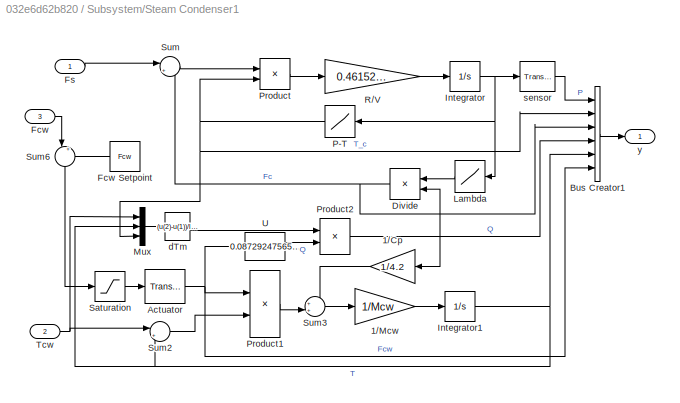
BLOCK [SubSystem] Subsystem/Steam Condenser1
  Ports = [3, 1]
BLOCK [Gain] Subsystem/Steam Condenser1/1//Cp
  Gain = 1/4.2
  OutDataTypeStr = Inherit: Same as input
  ParamDataTypeStr = Inherit: Same as input
BLOCK [Gain] Subsystem/Steam Condenser1/1//Mcw
  Gain = 1/Mcw
  OutDataTypeStr = Inherit: Same as input
  ParamDataTypeStr = Inherit: Same as input
BLOCK [Reference] Subsystem/Steam Condenser1/Actuator  REF=simulink_extras/Additional
Linear/Transfer Fcn
(with initial outputs)
  Ports = [1, 1]
  SourceBlock = simulink_extras/Additional\nLinear/Transfer Fcn\n(with initial outputs)
  SourceType = Transfer Function with Initial Outputs
BLOCK [BusCreator] Subsystem/Steam Condenser1/Bus Creator1
  DisplayOption = bar
  InheritFromInputs = on
  Inputs = 6
  Ports = [6, 1]
BLOCK [Product] Subsystem/Steam Condenser1/Divide
  InputSameDT = on
  Inputs = /*
  OutDataTypeStr = Inherit: Same as first input
  Ports = [2, 1]
  RndMeth = Zero
BLOCK [Inport] Subsystem/Steam Condenser1/Fcw
  Port = 3
BLOCK [Constant] Subsystem/Steam Condenser1/Fcw Setpoint
  Value = Fcw
BLOCK [Inport] Subsystem/Steam Condenser1/Fs
BLOCK [Integrator] Subsystem/Steam Condenser1/Integrator
  InitialCondition = P
  Ports = [1, 1]
BLOCK [Integrator] Subsystem/Steam Condenser1/Integrator1
  InitialCondition = T
  Ports = [1, 1]
BLOCK [Lookup] Subsystem/Steam Condenser1/Lambda
  InputValues = [50 60 70 80 90 100 110]
  Table = [2305.42 2293.64 2283.30 2274.05 2265.65 2257.92 2250.76]
BLOCK [Mux] Subsystem/Steam Condenser1/Mux
  DisplayOption = bar
  Inputs = 3
  Ports = [3, 1]
BLOCK [Lookup] Subsystem/Steam Condenser1/P-T
  InputValues = [50 60 70 80 90 100 110]
  Table = [81.3167 85.9258 89.9315 93.4854 96.6870 99.6059 102.2923]
BLOCK [Product] Subsystem/Steam Condenser1/Product
  InputSameDT = on
  OutDataTypeStr = Inherit: Same as first input
  Ports = [2, 1]
  RndMeth = Zero
BLOCK [Product] Subsystem/Steam Condenser1/Product1
  InputSameDT = on
  OutDataTypeStr = Inherit: Same as first input
  Ports = [2, 1]
  RndMeth = Zero
BLOCK [Product] Subsystem/Steam Condenser1/Product2
  InputSameDT = on
  Inputs = */
  OutDataTypeStr = Inherit: Same as first input
  Ports = [2, 1]
  RndMeth = Zero
BLOCK [Gain] Subsystem/Steam Condenser1/R//V
  Gain = 0.461526/V
  OutDataTypeStr = Inherit: Same as input
  ParamDataTypeStr = Inherit: Same as input
BLOCK [Saturate] Subsystem/Steam Condenser1/Saturation
  LowerLimit = 0
  UpperLimit = 200
BLOCK [Sum] Subsystem/Steam Condenser1/Sum
  InputSameDT = on
  Inputs = |+-
  OutDataTypeStr = Inherit: Same as first input
  Ports = [2, 1]
BLOCK [Sum] Subsystem/Steam Condenser1/Sum2
  InputSameDT = on
  Inputs = |+-
  OutDataTypeStr = Inherit: Same as first input
  Ports = [2, 1]
BLOCK [Sum] Subsystem/Steam Condenser1/Sum3
  InputSameDT = on
  Inputs = ++|
  OutDataTypeStr = Inherit: Same as first input
  Ports = [2, 1]
BLOCK [Sum] Subsystem/Steam Condenser1/Sum6
  InputSameDT = on
  Inputs = |++
  NameLocation = left
  OutDataTypeStr = Inherit: Same as first input
  Ports = [2, 1]
BLOCK [Inport] Subsystem/Steam Condenser1/Tcw
  Port = 2
BLOCK [Fcn] Subsystem/Steam Condenser1/U
  Expr = 0.0872924756541668/u^0.8+0.00073786772008033
BLOCK [Fcn] Subsystem/Steam Condenser1/dTm
  Expr = (u(2)-u(1))/log((u(3)-u(1))/(u(3)-u(2)))
BLOCK [Reference] Subsystem/Steam Condenser1/sensor  REF=simulink_extras/Additional
Linear/Transfer Fcn
(with initial outputs)
  Ports = [1, 1]
  SourceBlock = simulink_extras/Additional\nLinear/Transfer Fcn\n(with initial outputs)
  SourceType = Transfer Function with Initial Outputs
BLOCK [Outport] Subsystem/Steam Condenser1/y
  VectorParamsAs1DForOutWhenUnconnected = off
BLOCK [Sum] Subsystem/Sum2
  InputSameDT = on
  Inputs = |+-
  OutDataTypeStr = Inherit: Same as first input
  Ports = [2, 1]
BLOCK [Sum] Subsystem/Sum3
  InputSameDT = on
  Inputs = |++
  OutDataTypeStr = Inherit: Same as first input
  Ports = [2, 1]
BLOCK [Constant] Subsystem/Tcw1
  Value = 60
  VectorParams1D = off
BLOCK [Outport] T
  VectorParamsAs1DForOutWhenUnconnected = off
BLOCK [Outport] err
  Port = 5
BLOCK [Outport] pressure
  Port = 4
  VectorParamsAs1DForOutWhenUnconnected = off
LINE Fs:1 -> Subsystem:1
LINE Subsystem/Bus Selector1:1 -> Subsystem/Out1:1
LINE Subsystem/Bus Selector1:2 -> Subsystem/Out2:1
LINE Subsystem/Bus Selector1:3 -> Subsystem/Out3:1
NET Subsystem/Bus Selector1:4 -> Subsystem/Out4:1, Subsystem/Sum2:1
LINE Subsystem/Feed-Forward Neural Network/ a{1} :1 -> Subsystem/Feed-Forward Neural Network/Layer 2:1
LINE Subsystem/Feed-Forward Neural Network/ a{2} :1 -> Subsystem/Feed-Forward Neural Network/Layer 3:1
LINE Subsystem/Feed-Forward Neural Network/ a{3} :1 -> Subsystem/Feed-Forward Neural Network/Layer 4:1
LINE Subsystem/Feed-Forward Neural Network/ a{4} :1 -> Subsystem/Feed-Forward Neural Network/Layer 5:1
LINE Subsystem/Feed-Forward Neural Network/Input:1 -> Subsystem/Feed-Forward Neural Network/Process Input 1:1
LINE Subsystem/Feed-Forward Neural Network/Layer 1/Delays 1/mux:1 -> Subsystem/Feed-Forward Neural Network/Layer 1/Delays 1/pd{1,1}:1
LINE Subsystem/Feed-Forward Neural Network/Layer 1/Delays 1/p{1}:1 -> Subsystem/Feed-Forward Neural Network/Layer 1/Delays 1/mux:1
LINE Subsystem/Feed-Forward Neural Network/Layer 1/Delays 1:1 -> Subsystem/Feed-Forward Neural Network/Layer 1/IW{1,1}:1
LINE Subsystem/Feed-Forward Neural Network/Layer 1/IW{1,1}/IW{1,1}(1,:)':1 -> Subsystem/Feed-Forward Neural Network/Layer 1/IW{1,1}/dotprod1:1
LINE Subsystem/Feed-Forward Neural Network/Layer 1/IW{1,1}/IW{1,1}(10,:)':1 -> Subsystem/Feed-Forward Neural Network/Layer 1/IW{1,1}/dotprod10:1
LINE Subsystem/Feed-Forward Neural Network/Layer 1/IW{1,1}/IW{1,1}(2,:)':1 -> Subsystem/Feed-Forward Neural Network/Layer 1/IW{1,1}/dotprod2:1
LINE Subsystem/Feed-Forward Neural Network/Layer 1/IW{1,1}/IW{1,1}(3,:)':1 -> Subsystem/Feed-Forward Neural Network/Layer 1/IW{1,1}/dotprod3:1
LINE Subsystem/Feed-Forward Neural Network/Layer 1/IW{1,1}/IW{1,1}(4,:)':1 -> Subsystem/Feed-Forward Neural Network/Layer 1/IW{1,1}/dotprod4:1
LINE Subsystem/Feed-Forward Neural Network/Layer 1/IW{1,1}/IW{1,1}(5,:)':1 -> Subsystem/Feed-Forward Neural Network/Layer 1/IW{1,1}/dotprod5:1
LINE Subsystem/Feed-Forward Neural Network/Layer 1/IW{1,1}/IW{1,1}(6,:)':1 -> Subsystem/Feed-Forward Neural Network/Layer 1/IW{1,1}/dotprod6:1
LINE Subsystem/Feed-Forward Neural Network/Layer 1/IW{1,1}/IW{1,1}(7,:)':1 -> Subsystem/Feed-Forward Neural Network/Layer 1/IW{1,1}/dotprod7:1
LINE Subsystem/Feed-Forward Neural Network/Layer 1/IW{1,1}/IW{1,1}(8,:)':1 -> Subsystem/Feed-Forward Neural Network/Layer 1/IW{1,1}/dotprod8:1
LINE Subsystem/Feed-Forward Neural Network/Layer 1/IW{1,1}/IW{1,1}(9,:)':1 -> Subsystem/Feed-Forward Neural Network/Layer 1/IW{1,1}/dotprod9:1
LINE Subsystem/Feed-Forward Neural Network/Layer 1/IW{1,1}/Mux:1 -> Subsystem/Feed-Forward Neural Network/Layer 1/IW{1,1}/iz{1,1}:1
LINE Subsystem/Feed-Forward Neural Network/Layer 1/IW{1,1}/dotprod10:1 -> Subsystem/Feed-Forward Neural Network/Layer 1/IW{1,1}/Mux:10
LINE Subsystem/Feed-Forward Neural Network/Layer 1/IW{1,1}/dotprod1:1 -> Subsystem/Feed-Forward Neural Network/Layer 1/IW{1,1}/Mux:1
LINE Subsystem/Feed-Forward Neural Network/Layer 1/IW{1,1}/dotprod2:1 -> Subsystem/Feed-Forward Neural Network/Layer 1/IW{1,1}/Mux:2
LINE Subsystem/Feed-Forward Neural Network/Layer 1/IW{1,1}/dotprod3:1 -> Subsystem/Feed-Forward Neural Network/Layer 1/IW{1,1}/Mux:3
LINE Subsystem/Feed-Forward Neural Network/Layer 1/IW{1,1}/dotprod4:1 -> Subsystem/Feed-Forward Neural Network/Layer 1/IW{1,1}/Mux:4
LINE Subsystem/Feed-Forward Neural Network/Layer 1/IW{1,1}/dotprod5:1 -> Subsystem/Feed-Forward Neural Network/Layer 1/IW{1,1}/Mux:5
LINE Subsystem/Feed-Forward Neural Network/Layer 1/IW{1,1}/dotprod6:1 -> Subsystem/Feed-Forward Neural Network/Layer 1/IW{1,1}/Mux:6
LINE Subsystem/Feed-Forward Neural Network/Layer 1/IW{1,1}/dotprod7:1 -> Subsystem/Feed-Forward Neural Network/Layer 1/IW{1,1}/Mux:7
LINE Subsystem/Feed-Forward Neural Network/Layer 1/IW{1,1}/dotprod8:1 -> Subsystem/Feed-Forward Neural Network/Layer 1/IW{1,1}/Mux:8
LINE Subsystem/Feed-Forward Neural Network/Layer 1/IW{1,1}/dotprod9:1 -> Subsystem/Feed-Forward Neural Network/Layer 1/IW{1,1}/Mux:9
NET Subsystem/Feed-Forward Neural Network/Layer 1/IW{1,1}/pd{1,1}:1 -> Subsystem/Feed-Forward Neural Network/Layer 1/IW{1,1}/dotprod10:2, Subsystem/Feed-Forward Neural Network/Layer 1/IW{1,1}/dotprod1:2, Subsystem/Feed-Forward Neural Network/Layer 1/IW{1,1}/dotprod2:2, Subsystem/Feed-Forward Neural Network/Layer 1/IW{1,1}/dotprod3:2, Subsystem/Feed-Forward Neural Network/Layer 1/IW{1,1}/dotprod4:2, Subsystem/Feed-Forward Neural Network/Layer 1/IW{1,1}/dotprod5:2, Subsystem/Feed-Forward Neural Network/Layer 1/IW{1,1}/dotprod6:2, Subsystem/Feed-Forward Neural Network/Layer 1/IW{1,1}/dotprod7:2, Subsystem/Feed-Forward Neural Network/Layer 1/IW{1,1}/dotprod8:2, Subsystem/Feed-Forward Neural Network/Layer 1/IW{1,1}/dotprod9:2
LINE Subsystem/Feed-Forward Neural Network/Layer 1/IW{1,1}:1 -> Subsystem/Feed-Forward Neural Network/Layer 1/netsum:1
LINE Subsystem/Feed-Forward Neural Network/Layer 1/b{1}:1 -> Subsystem/Feed-Forward Neural Network/Layer 1/netsum:2
LINE Subsystem/Feed-Forward Neural Network/Layer 1/netsum:1 -> Subsystem/Feed-Forward Neural Network/Layer 1/poslin:1
LINE Subsystem/Feed-Forward Neural Network/Layer 1/poslin:1 -> Subsystem/Feed-Forward Neural Network/Layer 1/a{1}:1
LINE Subsystem/Feed-Forward Neural Network/Layer 1/p{1}:1 -> Subsystem/Feed-Forward Neural Network/Layer 1/Delays 1:1
LINE Subsystem/Feed-Forward Neural Network/Layer 1:1 -> Subsystem/Feed-Forward Neural Network/a{1}:1
LINE Subsystem/Feed-Forward Neural Network/Layer 2/Delays 1/mux:1 -> Subsystem/Feed-Forward Neural Network/Layer 2/Delays 1/pd{2,1}:1
LINE Subsystem/Feed-Forward Neural Network/Layer 2/Delays 1/p{2}:1 -> Subsystem/Feed-Forward Neural Network/Layer 2/Delays 1/mux:1
LINE Subsystem/Feed-Forward Neural Network/Layer 2/Delays 1:1 -> Subsystem/Feed-Forward Neural Network/Layer 2/LW{2,1}:1
LINE Subsystem/Feed-Forward Neural Network/Layer 2/LW{2,1}/IW{2,1}(1,:)':1 -> Subsystem/Feed-Forward Neural Network/Layer 2/LW{2,1}/dotprod1:1
LINE Subsystem/Feed-Forward Neural Network/Layer 2/LW{2,1}/IW{2,1}(10,:)':1 -> Subsystem/Feed-Forward Neural Network/Layer 2/LW{2,1}/dotprod10:1
LINE Subsystem/Feed-Forward Neural Network/Layer 2/LW{2,1}/IW{2,1}(2,:)':1 -> Subsystem/Feed-Forward Neural Network/Layer 2/LW{2,1}/dotprod2:1
LINE Subsystem/Feed-Forward Neural Network/Layer 2/LW{2,1}/IW{2,1}(3,:)':1 -> Subsystem/Feed-Forward Neural Network/Layer 2/LW{2,1}/dotprod3:1
LINE Subsystem/Feed-Forward Neural Network/Layer 2/LW{2,1}/IW{2,1}(4,:)':1 -> Subsystem/Feed-Forward Neural Network/Layer 2/LW{2,1}/dotprod4:1
LINE Subsystem/Feed-Forward Neural Network/Layer 2/LW{2,1}/IW{2,1}(5,:)':1 -> Subsystem/Feed-Forward Neural Network/Layer 2/LW{2,1}/dotprod5:1
LINE Subsystem/Feed-Forward Neural Network/Layer 2/LW{2,1}/IW{2,1}(6,:)':1 -> Subsystem/Feed-Forward Neural Network/Layer 2/LW{2,1}/dotprod6:1
LINE Subsystem/Feed-Forward Neural Network/Layer 2/LW{2,1}/IW{2,1}(7,:)':1 -> Subsystem/Feed-Forward Neural Network/Layer 2/LW{2,1}/dotprod7:1
LINE Subsystem/Feed-Forward Neural Network/Layer 2/LW{2,1}/IW{2,1}(8,:)':1 -> Subsystem/Feed-Forward Neural Network/Layer 2/LW{2,1}/dotprod8:1
LINE Subsystem/Feed-Forward Neural Network/Layer 2/LW{2,1}/IW{2,1}(9,:)':1 -> Subsystem/Feed-Forward Neural Network/Layer 2/LW{2,1}/dotprod9:1
LINE Subsystem/Feed-Forward Neural Network/Layer 2/LW{2,1}/Mux:1 -> Subsystem/Feed-Forward Neural Network/Layer 2/LW{2,1}/lz{2,1}:1
NET Subsystem/Feed-Forward Neural Network/Layer 2/LW{2,1}/ad{2,1}:1 -> Subsystem/Feed-Forward Neural Network/Layer 2/LW{2,1}/dotprod10:2, Subsystem/Feed-Forward Neural Network/Layer 2/LW{2,1}/dotprod1:2, Subsystem/Feed-Forward Neural Network/Layer 2/LW{2,1}/dotprod2:2, Subsystem/Feed-Forward Neural Network/Layer 2/LW{2,1}/dotprod3:2, Subsystem/Feed-Forward Neural Network/Layer 2/LW{2,1}/dotprod4:2, Subsystem/Feed-Forward Neural Network/Layer 2/LW{2,1}/dotprod5:2, Subsystem/Feed-Forward Neural Network/Layer 2/LW{2,1}/dotprod6:2, Subsystem/Feed-Forward Neural Network/Layer 2/LW{2,1}/dotprod7:2, Subsystem/Feed-Forward Neural Network/Layer 2/LW{2,1}/dotprod8:2, Subsystem/Feed-Forward Neural Network/Layer 2/LW{2,1}/dotprod9:2
LINE Subsystem/Feed-Forward Neural Network/Layer 2/LW{2,1}/dotprod10:1 -> Subsystem/Feed-Forward Neural Network/Layer 2/LW{2,1}/Mux:10
LINE Subsystem/Feed-Forward Neural Network/Layer 2/LW{2,1}/dotprod1:1 -> Subsystem/Feed-Forward Neural Network/Layer 2/LW{2,1}/Mux:1
LINE Subsystem/Feed-Forward Neural Network/Layer 2/LW{2,1}/dotprod2:1 -> Subsystem/Feed-Forward Neural Network/Layer 2/LW{2,1}/Mux:2
LINE Subsystem/Feed-Forward Neural Network/Layer 2/LW{2,1}/dotprod3:1 -> Subsystem/Feed-Forward Neural Network/Layer 2/LW{2,1}/Mux:3
LINE Subsystem/Feed-Forward Neural Network/Layer 2/LW{2,1}/dotprod4:1 -> Subsystem/Feed-Forward Neural Network/Layer 2/LW{2,1}/Mux:4
LINE Subsystem/Feed-Forward Neural Network/Layer 2/LW{2,1}/dotprod5:1 -> Subsystem/Feed-Forward Neural Network/Layer 2/LW{2,1}/Mux:5
LINE Subsystem/Feed-Forward Neural Network/Layer 2/LW{2,1}/dotprod6:1 -> Subsystem/Feed-Forward Neural Network/Layer 2/LW{2,1}/Mux:6
LINE Subsystem/Feed-Forward Neural Network/Layer 2/LW{2,1}/dotprod7:1 -> Subsystem/Feed-Forward Neural Network/Layer 2/LW{2,1}/Mux:7
LINE Subsystem/Feed-Forward Neural Network/Layer 2/LW{2,1}/dotprod8:1 -> Subsystem/Feed-Forward Neural Network/Layer 2/LW{2,1}/Mux:8
LINE Subsystem/Feed-Forward Neural Network/Layer 2/LW{2,1}/dotprod9:1 -> Subsystem/Feed-Forward Neural Network/Layer 2/LW{2,1}/Mux:9
LINE Subsystem/Feed-Forward Neural Network/Layer 2/LW{2,1}:1 -> Subsystem/Feed-Forward Neural Network/Layer 2/netsum:1
LINE Subsystem/Feed-Forward Neural Network/Layer 2/a{1} :1 -> Subsystem/Feed-Forward Neural Network/Layer 2/Delays 1:1
LINE Subsystem/Feed-Forward Neural Network/Layer 2/b{2}:1 -> Subsystem/Feed-Forward Neural Network/Layer 2/netsum:2
LINE Subsystem/Feed-Forward Neural Network/Layer 2/netsum:1 -> Subsystem/Feed-Forward Neural Network/Layer 2/poslin:1
LINE Subsystem/Feed-Forward Neural Network/Layer 2/poslin:1 -> Subsystem/Feed-Forward Neural Network/Layer 2/a{2}:1
LINE Subsystem/Feed-Forward Neural Network/Layer 2:1 -> Subsystem/Feed-Forward Neural Network/a{2}:1
LINE Subsystem/Feed-Forward Neural Network/Layer 3/Delays 1/mux:1 -> Subsystem/Feed-Forward Neural Network/Layer 3/Delays 1/pd{3,2}:1
LINE Subsystem/Feed-Forward Neural Network/Layer 3/Delays 1/p{3}:1 -> Subsystem/Feed-Forward Neural Network/Layer 3/Delays 1/mux:1
LINE Subsystem/Feed-Forward Neural Network/Layer 3/Delays 1:1 -> Subsystem/Feed-Forward Neural Network/Layer 3/LW{3,2}:1
LINE Subsystem/Feed-Forward Neural Network/Layer 3/LW{3,2}/IW{3,2}(1,:)':1 -> Subsystem/Feed-Forward Neural Network/Layer 3/LW{3,2}/dotprod1:1
LINE Subsystem/Feed-Forward Neural Network/Layer 3/LW{3,2}/IW{3,2}(10,:)':1 -> Subsystem/Feed-Forward Neural Network/Layer 3/LW{3,2}/dotprod10:1
LINE Subsystem/Feed-Forward Neural Network/Layer 3/LW{3,2}/IW{3,2}(2,:)':1 -> Subsystem/Feed-Forward Neural Network/Layer 3/LW{3,2}/dotprod2:1
LINE Subsystem/Feed-Forward Neural Network/Layer 3/LW{3,2}/IW{3,2}(3,:)':1 -> Subsystem/Feed-Forward Neural Network/Layer 3/LW{3,2}/dotprod3:1
LINE Subsystem/Feed-Forward Neural Network/Layer 3/LW{3,2}/IW{3,2}(4,:)':1 -> Subsystem/Feed-Forward Neural Network/Layer 3/LW{3,2}/dotprod4:1
LINE Subsystem/Feed-Forward Neural Network/Layer 3/LW{3,2}/IW{3,2}(5,:)':1 -> Subsystem/Feed-Forward Neural Network/Layer 3/LW{3,2}/dotprod5:1
LINE Subsystem/Feed-Forward Neural Network/Layer 3/LW{3,2}/IW{3,2}(6,:)':1 -> Subsystem/Feed-Forward Neural Network/Layer 3/LW{3,2}/dotprod6:1
LINE Subsystem/Feed-Forward Neural Network/Layer 3/LW{3,2}/IW{3,2}(7,:)':1 -> Subsystem/Feed-Forward Neural Network/Layer 3/LW{3,2}/dotprod7:1
LINE Subsystem/Feed-Forward Neural Network/Layer 3/LW{3,2}/IW{3,2}(8,:)':1 -> Subsystem/Feed-Forward Neural Network/Layer 3/LW{3,2}/dotprod8:1
LINE Subsystem/Feed-Forward Neural Network/Layer 3/LW{3,2}/IW{3,2}(9,:)':1 -> Subsystem/Feed-Forward Neural Network/Layer 3/LW{3,2}/dotprod9:1
LINE Subsystem/Feed-Forward Neural Network/Layer 3/LW{3,2}/Mux:1 -> Subsystem/Feed-Forward Neural Network/Layer 3/LW{3,2}/lz{3,2}:1
NET Subsystem/Feed-Forward Neural Network/Layer 3/LW{3,2}/ad{3,2}:1 -> Subsystem/Feed-Forward Neural Network/Layer 3/LW{3,2}/dotprod10:2, Subsystem/Feed-Forward Neural Network/Layer 3/LW{3,2}/dotprod1:2, Subsystem/Feed-Forward Neural Network/Layer 3/LW{3,2}/dotprod2:2, Subsystem/Feed-Forward Neural Network/Layer 3/LW{3,2}/dotprod3:2, Subsystem/Feed-Forward Neural Network/Layer 3/LW{3,2}/dotprod4:2, Subsystem/Feed-Forward Neural Network/Layer 3/LW{3,2}/dotprod5:2, Subsystem/Feed-Forward Neural Network/Layer 3/LW{3,2}/dotprod6:2, Subsystem/Feed-Forward Neural Network/Layer 3/LW{3,2}/dotprod7:2, Subsystem/Feed-Forward Neural Network/Layer 3/LW{3,2}/dotprod8:2, Subsystem/Feed-Forward Neural Network/Layer 3/LW{3,2}/dotprod9:2
LINE Subsystem/Feed-Forward Neural Network/Layer 3/LW{3,2}/dotprod10:1 -> Subsystem/Feed-Forward Neural Network/Layer 3/LW{3,2}/Mux:10
LINE Subsystem/Feed-Forward Neural Network/Layer 3/LW{3,2}/dotprod1:1 -> Subsystem/Feed-Forward Neural Network/Layer 3/LW{3,2}/Mux:1
LINE Subsystem/Feed-Forward Neural Network/Layer 3/LW{3,2}/dotprod2:1 -> Subsystem/Feed-Forward Neural Network/Layer 3/LW{3,2}/Mux:2
LINE Subsystem/Feed-Forward Neural Network/Layer 3/LW{3,2}/dotprod3:1 -> Subsystem/Feed-Forward Neural Network/Layer 3/LW{3,2}/Mux:3
LINE Subsystem/Feed-Forward Neural Network/Layer 3/LW{3,2}/dotprod4:1 -> Subsystem/Feed-Forward Neural Network/Layer 3/LW{3,2}/Mux:4
LINE Subsystem/Feed-Forward Neural Network/Layer 3/LW{3,2}/dotprod5:1 -> Subsystem/Feed-Forward Neural Network/Layer 3/LW{3,2}/Mux:5
LINE Subsystem/Feed-Forward Neural Network/Layer 3/LW{3,2}/dotprod6:1 -> Subsystem/Feed-Forward Neural Network/Layer 3/LW{3,2}/Mux:6
LINE Subsystem/Feed-Forward Neural Network/Layer 3/LW{3,2}/dotprod7:1 -> Subsystem/Feed-Forward Neural Network/Layer 3/LW{3,2}/Mux:7
LINE Subsystem/Feed-Forward Neural Network/Layer 3/LW{3,2}/dotprod8:1 -> Subsystem/Feed-Forward Neural Network/Layer 3/LW{3,2}/Mux:8
LINE Subsystem/Feed-Forward Neural Network/Layer 3/LW{3,2}/dotprod9:1 -> Subsystem/Feed-Forward Neural Network/Layer 3/LW{3,2}/Mux:9
LINE Subsystem/Feed-Forward Neural Network/Layer 3/LW{3,2}:1 -> Subsystem/Feed-Forward Neural Network/Layer 3/netsum:1
LINE Subsystem/Feed-Forward Neural Network/Layer 3/a{2} :1 -> Subsystem/Feed-Forward Neural Network/Layer 3/Delays 1:1
LINE Subsystem/Feed-Forward Neural Network/Layer 3/b{3}:1 -> Subsystem/Feed-Forward Neural Network/Layer 3/netsum:2
LINE Subsystem/Feed-Forward Neural Network/Layer 3/netsum:1 -> Subsystem/Feed-Forward Neural Network/Layer 3/poslin:1
LINE Subsystem/Feed-Forward Neural Network/Layer 3/poslin:1 -> Subsystem/Feed-Forward Neural Network/Layer 3/a{3}:1
LINE Subsystem/Feed-Forward Neural Network/Layer 3:1 -> Subsystem/Feed-Forward Neural Network/a{3}:1
LINE Subsystem/Feed-Forward Neural Network/Layer 4/Delays 1/mux:1 -> Subsystem/Feed-Forward Neural Network/Layer 4/Delays 1/pd{4,3}:1
LINE Subsystem/Feed-Forward Neural Network/Layer 4/Delays 1/p{4}:1 -> Subsystem/Feed-Forward Neural Network/Layer 4/Delays 1/mux:1
LINE Subsystem/Feed-Forward Neural Network/Layer 4/Delays 1:1 -> Subsystem/Feed-Forward Neural Network/Layer 4/LW{4,3}:1
LINE Subsystem/Feed-Forward Neural Network/Layer 4/LW{4,3}/IW{4,3}(1,:)':1 -> Subsystem/Feed-Forward Neural Network/Layer 4/LW{4,3}/dotprod1:1
LINE Subsystem/Feed-Forward Neural Network/Layer 4/LW{4,3}/IW{4,3}(10,:)':1 -> Subsystem/Feed-Forward Neural Network/Layer 4/LW{4,3}/dotprod10:1
LINE Subsystem/Feed-Forward Neural Network/Layer 4/LW{4,3}/IW{4,3}(2,:)':1 -> Subsystem/Feed-Forward Neural Network/Layer 4/LW{4,3}/dotprod2:1
LINE Subsystem/Feed-Forward Neural Network/Layer 4/LW{4,3}/IW{4,3}(3,:)':1 -> Subsystem/Feed-Forward Neural Network/Layer 4/LW{4,3}/dotprod3:1
LINE Subsystem/Feed-Forward Neural Network/Layer 4/LW{4,3}/IW{4,3}(4,:)':1 -> Subsystem/Feed-Forward Neural Network/Layer 4/LW{4,3}/dotprod4:1
LINE Subsystem/Feed-Forward Neural Network/Layer 4/LW{4,3}/IW{4,3}(5,:)':1 -> Subsystem/Feed-Forward Neural Network/Layer 4/LW{4,3}/dotprod5:1
LINE Subsystem/Feed-Forward Neural Network/Layer 4/LW{4,3}/IW{4,3}(6,:)':1 -> Subsystem/Feed-Forward Neural Network/Layer 4/LW{4,3}/dotprod6:1
LINE Subsystem/Feed-Forward Neural Network/Layer 4/LW{4,3}/IW{4,3}(7,:)':1 -> Subsystem/Feed-Forward Neural Network/Layer 4/LW{4,3}/dotprod7:1
LINE Subsystem/Feed-Forward Neural Network/Layer 4/LW{4,3}/IW{4,3}(8,:)':1 -> Subsystem/Feed-Forward Neural Network/Layer 4/LW{4,3}/dotprod8:1
LINE Subsystem/Feed-Forward Neural Network/Layer 4/LW{4,3}/IW{4,3}(9,:)':1 -> Subsystem/Feed-Forward Neural Network/Layer 4/LW{4,3}/dotprod9:1
LINE Subsystem/Feed-Forward Neural Network/Layer 4/LW{4,3}/Mux:1 -> Subsystem/Feed-Forward Neural Network/Layer 4/LW{4,3}/lz{4,3}:1
NET Subsystem/Feed-Forward Neural Network/Layer 4/LW{4,3}/ad{4,3}:1 -> Subsystem/Feed-Forward Neural Network/Layer 4/LW{4,3}/dotprod10:2, Subsystem/Feed-Forward Neural Network/Layer 4/LW{4,3}/dotprod1:2, Subsystem/Feed-Forward Neural Network/Layer 4/LW{4,3}/dotprod2:2, Subsystem/Feed-Forward Neural Network/Layer 4/LW{4,3}/dotprod3:2, Subsystem/Feed-Forward Neural Network/Layer 4/LW{4,3}/dotprod4:2, Subsystem/Feed-Forward Neural Network/Layer 4/LW{4,3}/dotprod5:2, Subsystem/Feed-Forward Neural Network/Layer 4/LW{4,3}/dotprod6:2, Subsystem/Feed-Forward Neural Network/Layer 4/LW{4,3}/dotprod7:2, Subsystem/Feed-Forward Neural Network/Layer 4/LW{4,3}/dotprod8:2, Subsystem/Feed-Forward Neural Network/Layer 4/LW{4,3}/dotprod9:2
LINE Subsystem/Feed-Forward Neural Network/Layer 4/LW{4,3}/dotprod10:1 -> Subsystem/Feed-Forward Neural Network/Layer 4/LW{4,3}/Mux:10
LINE Subsystem/Feed-Forward Neural Network/Layer 4/LW{4,3}/dotprod1:1 -> Subsystem/Feed-Forward Neural Network/Layer 4/LW{4,3}/Mux:1
LINE Subsystem/Feed-Forward Neural Network/Layer 4/LW{4,3}/dotprod2:1 -> Subsystem/Feed-Forward Neural Network/Layer 4/LW{4,3}/Mux:2
LINE Subsystem/Feed-Forward Neural Network/Layer 4/LW{4,3}/dotprod3:1 -> Subsystem/Feed-Forward Neural Network/Layer 4/LW{4,3}/Mux:3
LINE Subsystem/Feed-Forward Neural Network/Layer 4/LW{4,3}/dotprod4:1 -> Subsystem/Feed-Forward Neural Network/Layer 4/LW{4,3}/Mux:4
LINE Subsystem/Feed-Forward Neural Network/Layer 4/LW{4,3}/dotprod5:1 -> Subsystem/Feed-Forward Neural Network/Layer 4/LW{4,3}/Mux:5
LINE Subsystem/Feed-Forward Neural Network/Layer 4/LW{4,3}/dotprod6:1 -> Subsystem/Feed-Forward Neural Network/Layer 4/LW{4,3}/Mux:6
LINE Subsystem/Feed-Forward Neural Network/Layer 4/LW{4,3}/dotprod7:1 -> Subsystem/Feed-Forward Neural Network/Layer 4/LW{4,3}/Mux:7
LINE Subsystem/Feed-Forward Neural Network/Layer 4/LW{4,3}/dotprod8:1 -> Subsystem/Feed-Forward Neural Network/Layer 4/LW{4,3}/Mux:8
LINE Subsystem/Feed-Forward Neural Network/Layer 4/LW{4,3}/dotprod9:1 -> Subsystem/Feed-Forward Neural Network/Layer 4/LW{4,3}/Mux:9
LINE Subsystem/Feed-Forward Neural Network/Layer 4/LW{4,3}:1 -> Subsystem/Feed-Forward Neural Network/Layer 4/netsum:1
LINE Subsystem/Feed-Forward Neural Network/Layer 4/a{3} :1 -> Subsystem/Feed-Forward Neural Network/Layer 4/Delays 1:1
LINE Subsystem/Feed-Forward Neural Network/Layer 4/b{4}:1 -> Subsystem/Feed-Forward Neural Network/Layer 4/netsum:2
LINE Subsystem/Feed-Forward Neural Network/Layer 4/netsum:1 -> Subsystem/Feed-Forward Neural Network/Layer 4/poslin:1
LINE Subsystem/Feed-Forward Neural Network/Layer 4/poslin:1 -> Subsystem/Feed-Forward Neural Network/Layer 4/a{4}:1
LINE Subsystem/Feed-Forward Neural Network/Layer 4:1 -> Subsystem/Feed-Forward Neural Network/a{4}:1
LINE Subsystem/Feed-Forward Neural Network/Layer 5/Delays 1/mux:1 -> Subsystem/Feed-Forward Neural Network/Layer 5/Delays 1/pd{5,4}:1
LINE Subsystem/Feed-Forward Neural Network/Layer 5/Delays 1/p{5}:1 -> Subsystem/Feed-Forward Neural Network/Layer 5/Delays 1/mux:1
LINE Subsystem/Feed-Forward Neural Network/Layer 5/Delays 1:1 -> Subsystem/Feed-Forward Neural Network/Layer 5/LW{5,4}:1
LINE Subsystem/Feed-Forward Neural Network/Layer 5/LW{5,4}/IW{5,4}(1,:)':1 -> Subsystem/Feed-Forward Neural Network/Layer 5/LW{5,4}/dotprod1:1
LINE Subsystem/Feed-Forward Neural Network/Layer 5/LW{5,4}/Mux:1 -> Subsystem/Feed-Forward Neural Network/Layer 5/LW{5,4}/lz{5,4}:1
LINE Subsystem/Feed-Forward Neural Network/Layer 5/LW{5,4}/ad{5,4}:1 -> Subsystem/Feed-Forward Neural Network/Layer 5/LW{5,4}/dotprod1:2
LINE Subsystem/Feed-Forward Neural Network/Layer 5/LW{5,4}/dotprod1:1 -> Subsystem/Feed-Forward Neural Network/Layer 5/LW{5,4}/Mux:1
LINE Subsystem/Feed-Forward Neural Network/Layer 5/LW{5,4}:1 -> Subsystem/Feed-Forward Neural Network/Layer 5/netsum:1
LINE Subsystem/Feed-Forward Neural Network/Layer 5/a{4} :1 -> Subsystem/Feed-Forward Neural Network/Layer 5/Delays 1:1
LINE Subsystem/Feed-Forward Neural Network/Layer 5/b{5}:1 -> Subsystem/Feed-Forward Neural Network/Layer 5/netsum:2
LINE Subsystem/Feed-Forward Neural Network/Layer 5/netsum:1 -> Subsystem/Feed-Forward Neural Network/Layer 5/purelin:1
LINE Subsystem/Feed-Forward Neural Network/Layer 5/purelin:1 -> Subsystem/Feed-Forward Neural Network/Layer 5/a{5}:1
LINE Subsystem/Feed-Forward Neural Network/Layer 5:1 -> Subsystem/Feed-Forward Neural Network/Process Output 1:1
LINE Subsystem/Feed-Forward Neural Network/Process Input 1/x:1 -> Subsystem/Feed-Forward Neural Network/Process Input 1/p:1
LINE Subsystem/Feed-Forward Neural Network/Process Input 1:1 -> Subsystem/Feed-Forward Neural Network/Layer 1:1
LINE Subsystem/Feed-Forward Neural Network/Process Output 1/a:1 -> Subsystem/Feed-Forward Neural Network/Process Output 1/y:1
LINE Subsystem/Feed-Forward Neural Network/Process Output 1:1 -> Subsystem/Feed-Forward Neural Network/Output:1
LINE Subsystem/Feed-Forward Neural Network:1 -> Subsystem/Sum3:1
LINE Subsystem/In1:1 -> Subsystem/Steam Condenser1:1
LINE Subsystem/Input Step Test1:1 -> Subsystem/Sum3:2
LINE Subsystem/Pressure Setpoint1:1 -> Subsystem/Sum2:2
LINE Subsystem/Steam Condenser1/1//Cp:1 -> Subsystem/Steam Condenser1/Sum3:1
LINE Subsystem/Steam Condenser1/1//Mcw:1 -> Subsystem/Steam Condenser1/Integrator1:1
NET Subsystem/Steam Condenser1/Actuator:1 -> Subsystem/Steam Condenser1/Bus Creator1:6, Subsystem/Steam Condenser1/Product1:1, Subsystem/Steam Condenser1/U:1
LINE Subsystem/Steam Condenser1/Bus Creator1:1 -> Subsystem/Steam Condenser1/y:1
NET Subsystem/Steam Condenser1/Divide:1 -> Subsystem/Steam Condenser1/Bus Creator1:3, Subsystem/Steam Condenser1/Sum:2
LINE Subsystem/Steam Condenser1/Fcw Setpoint:1 -> Subsystem/Steam Condenser1/Sum6:2
LINE Subsystem/Steam Condenser1/Fcw:1 -> Subsystem/Steam Condenser1/Sum6:1
LINE Subsystem/Steam Condenser1/Fs:1 -> Subsystem/Steam Condenser1/Sum:1
NET Subsystem/Steam Condenser1/Integrator1:1 -> Subsystem/Steam Condenser1/Bus Creator1:5, Subsystem/Steam Condenser1/Mux:2, Subsystem/Steam Condenser1/Sum2:2
NET Subsystem/Steam Condenser1/Integrator:1 -> Subsystem/Steam Condenser1/Lambda:1, Subsystem/Steam Condenser1/P-T:1, Subsystem/Steam Condenser1/sensor:1
LINE Subsystem/Steam Condenser1/Lambda:1 -> Subsystem/Steam Condenser1/Divide:1
LINE Subsystem/Steam Condenser1/Mux:1 -> Subsystem/Steam Condenser1/dTm:1
NET Subsystem/Steam Condenser1/P-T:1 -> Subsystem/Steam Condenser1/Bus Creator1:2, Subsystem/Steam Condenser1/Mux:3, Subsystem/Steam Condenser1/Product:2
LINE Subsystem/Steam Condenser1/Product1:1 -> Subsystem/Steam Condenser1/Sum3:2
NET Subsystem/Steam Condenser1/Product2:1 -> Subsystem/Steam Condenser1/1//Cp:1, Subsystem/Steam Condenser1/Bus Creator1:4, Subsystem/Steam Condenser1/Divide:2
LINE Subsystem/Steam Condenser1/Product:1 -> Subsystem/Steam Condenser1/R//V:1
LINE Subsystem/Steam Condenser1/R//V:1 -> Subsystem/Steam Condenser1/Integrator:1
LINE Subsystem/Steam Condenser1/Saturation:1 -> Subsystem/Steam Condenser1/Actuator:1
LINE Subsystem/Steam Condenser1/Sum2:1 -> Subsystem/Steam Condenser1/Product1:2
LINE Subsystem/Steam Condenser1/Sum3:1 -> Subsystem/Steam Condenser1/1//Mcw:1
LINE Subsystem/Steam Condenser1/Sum6:1 -> Subsystem/Steam Condenser1/Saturation:1
LINE Subsystem/Steam Condenser1/Sum:1 -> Subsystem/Steam Condenser1/Product:1
NET Subsystem/Steam Condenser1/Tcw:1 -> Subsystem/Steam Condenser1/Mux:1, Subsystem/Steam Condenser1/Sum2:1
LINE Subsystem/Steam Condenser1/U:1 -> Subsystem/Steam Condenser1/Product2:2
LINE Subsystem/Steam Condenser1/dTm:1 -> Subsystem/Steam Condenser1/Product2:1
LINE Subsystem/Steam Condenser1/sensor:1 -> Subsystem/Steam Condenser1/Bus Creator1:1
LINE Subsystem/Steam Condenser1:1 -> Subsystem/Bus Selector1:1
NET Subsystem/Sum2:1 -> Subsystem/Feed-Forward Neural Network:1, Subsystem/Out5:1
NET Subsystem/Sum3:1 -> Subsystem/Out6:1, Subsystem/Steam Condenser1:3
LINE Subsystem/Tcw1:1 -> Subsystem/Steam Condenser1:2
LINE Subsystem:1 -> T:1
LINE Subsystem:2 -> Fcw:1
LINE Subsystem:3 -> Q:1
LINE Subsystem:4 -> pressure:1
LINE Subsystem:5 -> err:1
LINE Subsystem:6 -> Fcww:1
note: NET lines group one-source signal fan-out (src -> all destinations, sorted); 1:1 wires keep LINE
